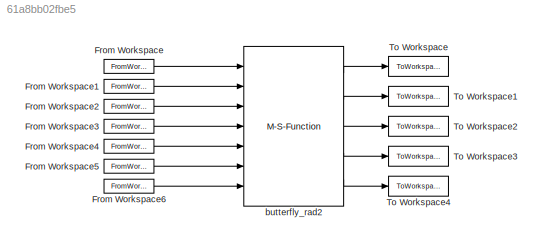
MODEL slx_61a8bb02fbe5
KIND model
BLOCK [FromWorkspace] From Workspace
  Interpolate = off
  OutputAfterFinalValue = Setting to zero
  SampleTime = 0
  VariableName = a_re
  ZeroCross = on
BLOCK [FromWorkspace] From Workspace1
  Interpolate = off
  OutputAfterFinalValue = Setting to zero
  SampleTime = 0
  VariableName = a_im
  ZeroCross = on
BLOCK [FromWorkspace] From Workspace2
  Interpolate = off
  OutputAfterFinalValue = Setting to zero
  SampleTime = 0
  VariableName = b_re
  ZeroCross = on
BLOCK [FromWorkspace] From Workspace3
  Interpolate = off
  OutputAfterFinalValue = Setting to zero
  SampleTime = 0
  VariableName = b_im
  ZeroCross = on
BLOCK [FromWorkspace] From Workspace4
  Interpolate = off
  OutputAfterFinalValue = Setting to zero
  SampleTime = 0
  VariableName = w_re
  ZeroCross = on
BLOCK [FromWorkspace] From Workspace5
  Interpolate = off
  OutputAfterFinalValue = Setting to zero
  SampleTime = 0
  VariableName = w_im
  ZeroCross = on
BLOCK [FromWorkspace] From Workspace6
  Interpolate = off
  OutputAfterFinalValue = Setting to zero
  SampleTime = 0
  VariableName = shift
  ZeroCross = on
BLOCK [ToWorkspace] To Workspace
  MaxDataPoints = inf
  Ports = [1]
  SampleTime = -1
  VariableName = apbw_re
BLOCK [ToWorkspace] To Workspace1
  MaxDataPoints = inf
  Ports = [1]
  SampleTime = -1
  VariableName = apbw_im
BLOCK [ToWorkspace] To Workspace2
  MaxDataPoints = inf
  Ports = [1]
  SampleTime = -1
  VariableName = ambw_re
BLOCK [ToWorkspace] To Workspace3
  MaxDataPoints = inf
  Ports = [1]
  SampleTime = -1
  VariableName = ambw_im
BLOCK [ToWorkspace] To Workspace4
  MaxDataPoints = inf
  Ports = [1]
  SampleTime = -1
  VariableName = oflow
BLOCK [M-S-Function] butterfly_rad2
  FunctionName = msfcn_butterfly
  Ports = [7, 5]
LINE From Workspace1:1 -> butterfly_rad2:2
LINE From Workspace2:1 -> butterfly_rad2:3
LINE From Workspace3:1 -> butterfly_rad2:4
LINE From Workspace4:1 -> butterfly_rad2:5
LINE From Workspace5:1 -> butterfly_rad2:6
LINE From Workspace6:1 -> butterfly_rad2:7
LINE From Workspace:1 -> butterfly_rad2:1
LINE butterfly_rad2:1 -> To Workspace:1
LINE butterfly_rad2:2 -> To Workspace1:1
LINE butterfly_rad2:3 -> To Workspace2:1
LINE butterfly_rad2:4 -> To Workspace3:1
LINE butterfly_rad2:5 -> To Workspace4:1
